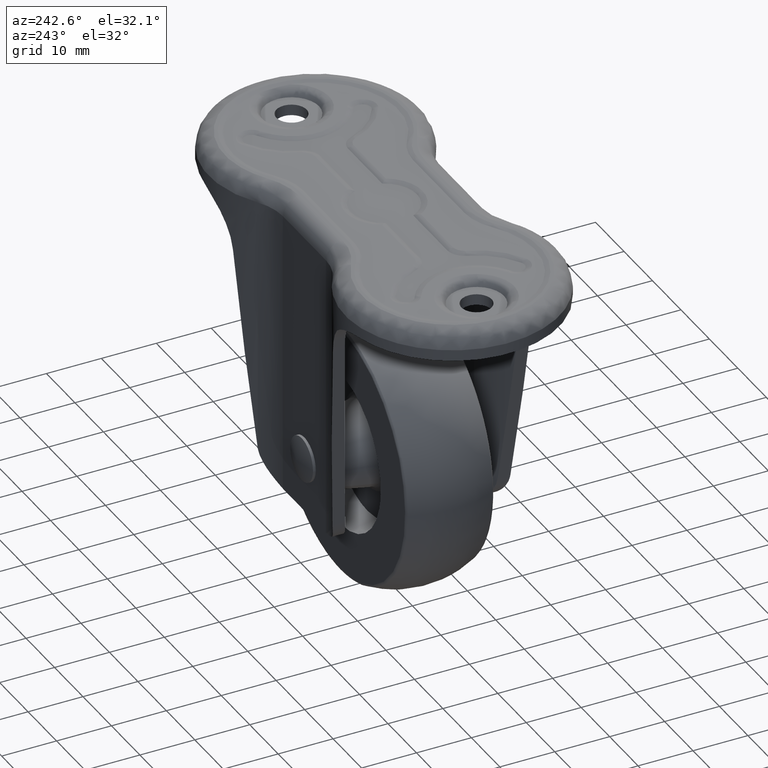
[diagram: clean part render]
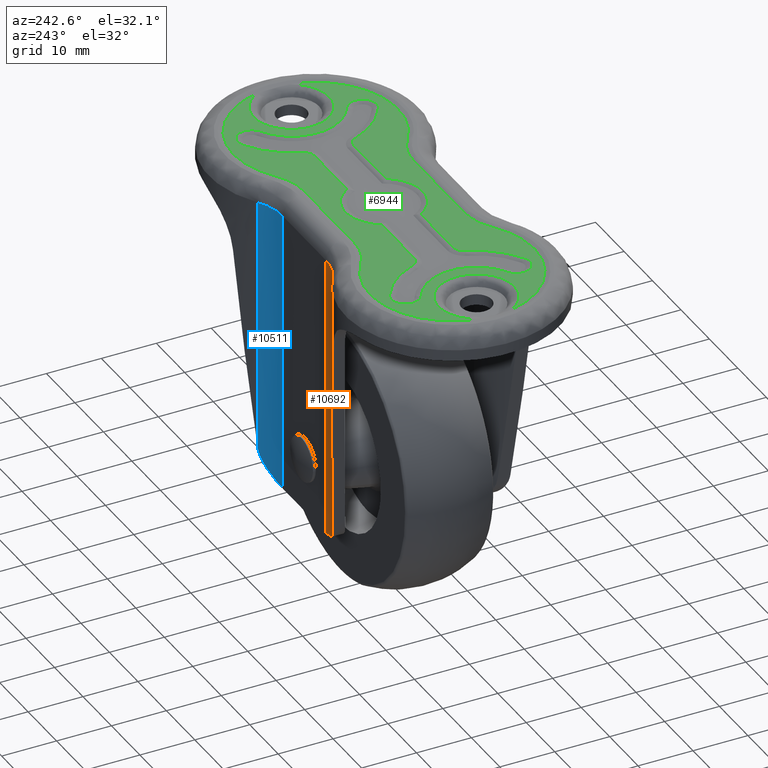
[diagram: same view with three faces highlighted in distinct colors, each labeled with its STEP entity id]
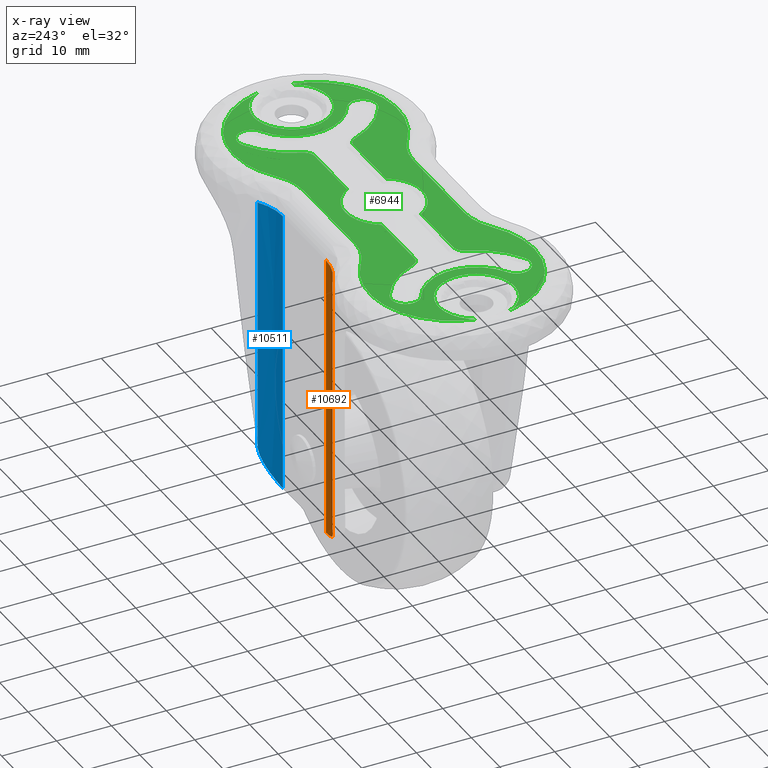
[diagram: x-ray of the same camera — body ghosted, the three highlighted faces saturated]
A machine part, auxiliary view with three faces highlighted in distinct colors.
The next image is the same camera in x-ray (body ghosted, the three faces saturated) — at least one of them is partly hidden behind the body in this view.
Their STEP definitions:

[orange] entity #10692 — the highlighted face is a freeform B-spline surface patch.
#5935=CARTESIAN_POINT('',(-7.568323000000000,14.500000000000000,-3.0));
#5936=VERTEX_POINT('',#5935);
#6067=CARTESIAN_POINT('',(-13.138383149261101,16.194915232496449,-3.0));
#6068=VERTEX_POINT('',#6067);
#6100=CARTESIAN_POINT('',(-13.138383149261101,16.194915232496449,-3.0));
#6101=CARTESIAN_POINT('',(-10.611226200626284,14.499999999999998,-3.0));
#6102=CARTESIAN_POINT('',(-7.568323000000000,14.500000000000000,-3.0));
#6110=(BOUNDED_CURVE()B_SPLINE_CURVE(2,(#6100,#6101,#6102),.UNSPECIFIED.,.F.,.U.)CURVE()GEOMETRIC_REPRESENTATION_ITEM()QUASI_UNIFORM_CURVE()RATIONAL_B_SPLINE_CURVE((1.0,0.956689203460579,1.0))REPRESENTATION_ITEM(''));
#6111=EDGE_CURVE('',#6068,#5936,#6110,.T.);
#9415=CARTESIAN_POINT('',(-13.138383063988879,16.194915359639250,-49.797710523138001));
#9416=VERTEX_POINT('',#9415);
#9417=CARTESIAN_POINT('',(-7.568323000000000,14.500000000000000,-54.988164655750097));
#9418=VERTEX_POINT('',#9417);
#9419=CARTESIAN_POINT('',(-13.138383063988879,16.194915359639250,-49.797710523138001));
#9420=CARTESIAN_POINT('',(-13.091238274713531,16.163296258890821,-50.149163291198803));
#9421=CARTESIAN_POINT('',(-13.014389561234200,16.112180758206950,-50.487927690786996));
#9422=CARTESIAN_POINT('',(-12.858299344993929,16.013543824127680,-50.979551605733540));
#9423=CARTESIAN_POINT('',(-12.799412473243271,15.976996100511190,-51.140654579037580));
#9424=CARTESIAN_POINT('',(-12.700818300560201,15.917519873214280,-51.378318461215088));
#9425=CARTESIAN_POINT('',(-12.666240024781519,15.896918323624780,-51.456873708558547));
#9426=CARTESIAN_POINT('',(-12.593624460554199,15.854300632540360,-51.612668478247073));
#9427=CARTESIAN_POINT('',(-12.555529177608140,15.832253032274719,-51.690001779778129));
#9428=CARTESIAN_POINT('',(-12.358175341932871,15.719890557958980,-52.069900491610973));
#9429=CARTESIAN_POINT('',(-12.177308048448589,15.622578633238110,-52.355095264160937));
#9430=CARTESIAN_POINT('',(-11.872154039316200,15.472825651955970,-52.757822614692920));
#9431=CARTESIAN_POINT('',(-11.764752256056360,15.422259006186691,-52.887852051499117));
#9432=CARTESIAN_POINT('',(-11.594831056390410,15.346253068563440,-53.076658926092911));
#9433=CARTESIAN_POINT('',(-11.536616108629440,15.320848257868461,-53.138656328664958));
#9434=CARTESIAN_POINT('',(-11.417641788420070,15.270323853666991,-53.260070489092911));
#9435=CARTESIAN_POINT('',(-11.357039368644029,15.245268706515400,-53.319336863503452));
#9436=CARTESIAN_POINT('',(-11.048467952259660,15.121334865909221,-53.608626581331599));
#9437=CARTESIAN_POINT('',(-10.783961638104580,15.026492882289769,-53.817721851273028));
#9438=CARTESIAN_POINT('',(-10.359354389956380,14.896247555235380,-54.098472958123459));
#9439=CARTESIAN_POINT('',(-10.213150329789920,14.854832499082940,-54.186536238411783));
#9440=CARTESIAN_POINT('',(-9.986394874259617,14.796442902615450,-54.310065774464313));
#9441=CARTESIAN_POINT('',(-9.909566070609310,14.777602472046910,-54.349812118307732));
#9442=CARTESIAN_POINT('',(-9.753318349520249,14.741299874993620,-54.426362811324509));
#9443=CARTESIAN_POINT('',(-9.674491636565223,14.723976776154490,-54.462874611417050));
#9444=CARTESIAN_POINT('',(-9.277431903126818,14.641796860566480,-54.636460787463527));
#9445=CARTESIAN_POINT('',(-8.949885134945827,14.590073832325480,-54.747127140841833));
#9446=CARTESIAN_POINT('',(-8.443218410055648,14.536898290851759,-54.870586730268002));
#9447=CARTESIAN_POINT('',(-8.271758975496445,14.523247336813281,-54.904608249589202));
#9448=CARTESIAN_POINT('',(-7.923444932431742,14.504785930900130,-54.957810969658922));
#9449=CARTESIAN_POINT('',(-7.746017994479293,14.500000000000000,-54.976987063634077));
#9450=CARTESIAN_POINT('',(-7.568323000000000,14.500000000000000,-54.988164655750097));
#9451=B_SPLINE_CURVE_WITH_KNOTS('',3,(#9419,#9420,#9421,#9422,#9423,#9424,#9425,#9426,#9427,#9428,#9429,#9430,#9431,#9432,#9433,#9434,#9435,#9436,#9437,#9438,#9439,#9440,#9441,#9442,#9443,#9444,#9445,#9446,#9447,#9448,#9449,#9450),.UNSPECIFIED.,.F.,.U.,(4,2,2,2,2,2,2,2,2,2,2,2,2,2,2,4),(0.0,0.125000000000002,0.187500000000003,0.218750000000005,0.250000000000006,0.375000000000011,0.437500000000012,0.468750000000012,0.500000000000012,0.625000000000012,0.687500000000011,0.718750000000010,0.750000000000010,0.875000000000005,0.937500000000002,1.0),.UNSPECIFIED.);
#9452=EDGE_CURVE('',#9416,#9418,#9451,.T.);
#10460=CARTESIAN_POINT('',(-7.568323000000000,14.500000000000000,-3.0));
#10461=CARTESIAN_POINT('',(-7.568323000000000,14.500000000000000,-54.988164655750097));
#10462=QUASI_UNIFORM_CURVE('',1,(#10460,#10461),.UNSPECIFIED.,.F.,.U.);
#10463=EDGE_CURVE('',#5936,#9418,#10462,.T.);
#10655=CARTESIAN_POINT('',(-13.138383149261101,16.194915232496449,-3.0));
#10656=CARTESIAN_POINT('',(-13.138383063988879,16.194915359639250,-49.797710523138001));
#10657=QUASI_UNIFORM_CURVE('',1,(#10655,#10656),.UNSPECIFIED.,.F.,.U.);
#10658=EDGE_CURVE('',#6068,#9416,#10657,.T.);
#10672=CARTESIAN_POINT('',(-13.376946309023106,16.359981864032896,-1.700295883606247));
#10673=CARTESIAN_POINT('',(-13.376946309023106,16.359981864032896,-56.320361375053707));
#10674=CARTESIAN_POINT('',(-10.639573869773178,14.406624378765391,-1.700295883606246));
#10675=CARTESIAN_POINT('',(-10.639573869773178,14.406624378765391,-56.320361375053707));
#10676=CARTESIAN_POINT('',(-7.278132199085204,14.504211421850489,-1.700295883606246));
#10677=CARTESIAN_POINT('',(-7.278132199085204,14.504211421850489,-56.320361375053700));
#10685=(BOUNDED_SURFACE()B_SPLINE_SURFACE(1,2,((#10672,#10674,#10676),(#10673,#10675,#10677)),.UNSPECIFIED.,.F.,.F.,.U.)B_SPLINE_SURFACE_WITH_KNOTS((2,2),(3,3),(0.0,54.620065491447463),(0.0,6.545613450249146),.UNSPECIFIED.)GEOMETRIC_REPRESENTATION_ITEM()RATIONAL_B_SPLINE_SURFACE(((0.997545484935413,0.945310980512866,0.997117298451355),(0.997545484935413,0.945310980512866,0.997117298451355)))REPRESENTATION_ITEM('')SURFACE());
#10686=ORIENTED_EDGE('',*,*,#10658,.F.);
#10687=ORIENTED_EDGE('',*,*,#6111,.T.);
#10688=ORIENTED_EDGE('',*,*,#10463,.T.);
#10689=ORIENTED_EDGE('',*,*,#9452,.F.);
#10690=EDGE_LOOP('',(#10686,#10687,#10688,#10689));
#10691=FACE_OUTER_BOUND('',#10690,.T.);
#10692=ADVANCED_FACE('',(#10691),#10685,.F.);

[blue] entity #10511 — the highlighted face is a freeform B-spline surface patch.
#5860=CARTESIAN_POINT('',(13.138383149261101,16.194915232496399,-3.0));
#5861=VERTEX_POINT('',#5860);
#5875=CARTESIAN_POINT('',(7.568322999999910,14.500000000000000,-3.0));
#5876=VERTEX_POINT('',#5875);
#5877=CARTESIAN_POINT('',(7.568322999999910,14.500000000000000,-3.0));
#5878=CARTESIAN_POINT('',(10.611226200626218,14.499999999999998,-3.000000000000000));
#5879=CARTESIAN_POINT('',(13.138383149261101,16.194915232496399,-3.0));
#5887=(BOUNDED_CURVE()B_SPLINE_CURVE(2,(#5877,#5878,#5879),.UNSPECIFIED.,.F.,.U.)CURVE()GEOMETRIC_REPRESENTATION_ITEM()QUASI_UNIFORM_CURVE()RATIONAL_B_SPLINE_CURVE((1.0,0.956689203460579,1.0))REPRESENTATION_ITEM(''));
#5888=EDGE_CURVE('',#5876,#5861,#5887,.T.);
#8838=CARTESIAN_POINT('',(7.568322999999910,14.500000000000000,-54.988164655750097));
#8839=VERTEX_POINT('',#8838);
#8853=CARTESIAN_POINT('',(13.138383063988840,16.194915359639300,-49.797710523136800));
#8854=VERTEX_POINT('',#8853);
#8855=CARTESIAN_POINT('',(7.568322999999910,14.500000000000000,-54.988164655750197));
#8856=CARTESIAN_POINT('',(7.923174103565640,14.500000000000000,-54.965843369159117));
#8857=CARTESIAN_POINT('',(8.269504132738446,14.518811451216630,-54.912656972294123));
#8858=CARTESIAN_POINT('',(8.777135052808291,14.571872362937540,-54.789348183008322));
#8859=CARTESIAN_POINT('',(8.944356275472249,14.593714002141519,-54.740943021128032));
#8860=CARTESIAN_POINT('',(9.192221521122660,14.632378906000749,-54.657323470888777));
#8861=CARTESIAN_POINT('',(9.274348198131314,14.646251408492070,-54.627612275254918));
#8862=CARTESIAN_POINT('',(9.437606419821270,14.675914150533670,-54.564470398189769));
#8863=CARTESIAN_POINT('',(9.518230909715436,14.691613704707100,-54.531232488570303));
#8864=CARTESIAN_POINT('',(9.915455207590478,14.773937508679801,-54.357350870553212));
#8865=CARTESIAN_POINT('',(10.215622039929650,14.852196870978570,-54.193413179448562));
#8866=CARTESIAN_POINT('',(10.641764523877930,14.982855913925940,-53.911790491594971));
#8867=CARTESIAN_POINT('',(10.779767310172300,15.028630264177430,-53.811921587810922));
#8868=CARTESIAN_POINT('',(11.047769495046079,15.123770943598631,-53.599947452603743));
#8869=CARTESIAN_POINT('',(11.176292667003681,15.172614195989469,-53.488994789581199));
#8870=CARTESIAN_POINT('',(11.545245845016151,15.320982138360661,-53.142469695308257));
#8871=CARTESIAN_POINT('',(11.769715364466590,15.422564096184660,-52.892962691731803));
#8872=CARTESIAN_POINT('',(12.024477995751710,15.547575527931500,-52.556806213334013));
#8873=CARTESIAN_POINT('',(12.074128061589230,15.572476899892679,-52.488350009426448));
#8874=CARTESIAN_POINT('',(12.170803674148900,15.621930412523289,-52.348911183156751));
#8875=CARTESIAN_POINT('',(12.217933598494090,15.646538820230360,-52.277758272841503));
#8876=CARTESIAN_POINT('',(12.354380084211270,15.719096179553050,-52.061891944191053));
#8877=CARTESIAN_POINT('',(12.438802241335591,15.765785757194740,-51.914801156486703));
#8878=CARTESIAN_POINT('',(12.672940046048691,15.899119188640929,-51.463779852750413));
#8879=CARTESIAN_POINT('',(12.803711789479150,15.979084366991369,-51.150192467451859));
#8880=CARTESIAN_POINT('',(12.960578048423310,16.078158737947138,-50.658038902578703));
#8881=CARTESIAN_POINT('',(13.006273979166620,16.107692416750591,-50.490337245351967));
#8882=CARTESIAN_POINT('',(13.083638963736499,16.158331866836349,-50.146918857517797));
#8883=CARTESIAN_POINT('',(13.114831234363040,16.179119601821821,-49.973283600079498));
#8884=CARTESIAN_POINT('',(13.138383063988821,16.194915359639250,-49.797710523136800));
#8885=B_SPLINE_CURVE_WITH_KNOTS('',3,(#8855,#8856,#8857,#8858,#8859,#8860,#8861,#8862,#8863,#8864,#8865,#8866,#8867,#8868,#8869,#8870,#8871,#8872,#8873,#8874,#8875,#8876,#8877,#8878,#8879,#8880,#8881,#8882,#8883,#8884),.UNSPECIFIED.,.F.,.U.,(4,2,2,2,2,2,2,2,2,2,2,2,2,2,4),(0.0,0.124999999999998,0.187499999999998,0.218749999999997,0.249999999999997,0.374999999999997,0.437499999999997,0.499999999999997,0.625000000000000,0.656250000000000,0.687500000000000,0.750000000000000,0.875000000000000,0.937500000000000,1.0),.UNSPECIFIED.);
#8886=EDGE_CURVE('',#8839,#8854,#8885,.T.);
#10466=CARTESIAN_POINT('',(7.568322999999910,14.500000000000000,-3.0));
#10467=CARTESIAN_POINT('',(7.568322999999910,14.500000000000000,-54.988164655750097));
#10468=QUASI_UNIFORM_CURVE('',1,(#10466,#10467),.UNSPECIFIED.,.F.,.U.);
#10469=EDGE_CURVE('',#5876,#8839,#10468,.T.);
#10487=CARTESIAN_POINT('',(7.280208138183072,14.504151370373791,-1.700295883606246));
#10488=CARTESIAN_POINT('',(7.280208138183072,14.504151370373791,-56.320361375053700));
#10489=CARTESIAN_POINT('',(10.641174522982755,14.407276717564669,-1.700295883606246));
#10490=CARTESIAN_POINT('',(10.641174522982755,14.407276717564669,-56.320361375053700));
#10491=CARTESIAN_POINT('',(13.377911791425477,16.360670907590574,-1.700295883606246));
#10492=CARTESIAN_POINT('',(13.377911791425477,16.360670907590574,-56.320361375053693));
#10500=(BOUNDED_SURFACE()B_SPLINE_SURFACE(1,2,((#10487,#10489,#10491),(#10488,#10490,#10492)),.UNSPECIFIED.,.F.,.F.,.U.)B_SPLINE_SURFACE_WITH_KNOTS((2,2),(3,3),(0.0,54.620065491447463),(0.0,6.544671564971601),.UNSPECIFIED.)GEOMETRIC_REPRESENTATION_ITEM()RATIONAL_B_SPLINE_SURFACE(((1.0,0.944030759420616,0.991947840278361),(1.0,0.944030759420616,0.991947840278361)))REPRESENTATION_ITEM('')SURFACE());
#10501=ORIENTED_EDGE('',*,*,#10469,.F.);
#10502=ORIENTED_EDGE('',*,*,#5888,.T.);
#10503=CARTESIAN_POINT('',(13.138383149261101,16.194915232496399,-3.0));
#10504=CARTESIAN_POINT('',(13.138383063988840,16.194915359639300,-49.797710523136800));
#10505=QUASI_UNIFORM_CURVE('',1,(#10503,#10504),.UNSPECIFIED.,.F.,.U.);
#10506=EDGE_CURVE('',#5861,#8854,#10505,.T.);
#10507=ORIENTED_EDGE('',*,*,#10506,.T.);
#10508=ORIENTED_EDGE('',*,*,#8886,.F.);
#10509=EDGE_LOOP('',(#10501,#10502,#10507,#10508));
#10510=FACE_OUTER_BOUND('',#10509,.T.);
#10511=ADVANCED_FACE('',(#10510),#10500,.F.);

[green] entity #6944 — the highlighted face is a freeform B-spline surface patch.
#3243=CARTESIAN_POINT('',(26.047613394952311,2.368902925116919,-0.200000000000000));
#3244=VERTEX_POINT('',#3243);
#3258=CARTESIAN_POINT('',(38.706176823812051,-2.954380345651690,-0.200000000000017));
#3259=VERTEX_POINT('',#3258);
#3260=CARTESIAN_POINT('',(38.706176823812058,-2.954380345651694,-0.200000000000000));
#3261=CARTESIAN_POINT('',(36.344690616050030,-7.915082509113887,-0.200000000000000));
#3262=CARTESIAN_POINT('',(30.985595608265271,-6.704593450276422,-0.200000000000000));
#3263=CARTESIAN_POINT('',(25.626500600480504,-5.494104391438955,-0.200000000000000));
#3264=CARTESIAN_POINT('',(25.626500600480501,0.0,-0.200000000000000));
#3265=CARTESIAN_POINT('',(25.626500600480501,1.221881444278796,-0.200000000000000));
#3266=CARTESIAN_POINT('',(26.047613394952304,2.368902925116919,-0.200000000000000));
#3274=(BOUNDED_CURVE()B_SPLINE_CURVE(2,(#3260,#3261,#3262,#3263,#3264,#3265,#3266),.UNSPECIFIED.,.F.,.U.)B_SPLINE_CURVE_WITH_KNOTS((3,2,2,3),(0.0,0.250000000000000,0.500000000000000,0.567003238297264),.UNSPECIFIED.)CURVE()GEOMETRIC_REPRESENTATION_ITEM()RATIONAL_B_SPLINE_CURVE((1.0,0.781129020267206,1.0,0.781129020267206,1.0,0.941339742354432,0.914122902481703))REPRESENTATION_ITEM(''));
#3275=EDGE_CURVE('',#3259,#3244,#3274,.T.);
#3277=CARTESIAN_POINT('',(38.706176823812051,2.954380345651690,-0.200000000000017));
#3278=VERTEX_POINT('',#3277);
#3300=CARTESIAN_POINT('',(29.820764818798569,6.329825655956293,-0.200000000000001));
#3301=VERTEX_POINT('',#3300);
#3302=CARTESIAN_POINT('',(29.820764818798569,6.329825655956293,-0.200000000000000));
#3303=CARTESIAN_POINT('',(30.386434508754327,6.569257548527065,-0.200000000000000));
#3304=CARTESIAN_POINT('',(30.985595608265260,6.704593450276419,-0.200000000000000));
#3305=CARTESIAN_POINT('',(36.344690616050016,7.915082509113889,-0.200000000000000));
#3306=CARTESIAN_POINT('',(38.706176823812058,2.954380345651702,-0.200000000000000));
#3314=(BOUNDED_CURVE()B_SPLINE_CURVE(2,(#3302,#3303,#3304,#3305,#3306),.UNSPECIFIED.,.F.,.U.)B_SPLINE_CURVE_WITH_KNOTS((3,2,3),(0.715304508942357,0.750000000000000,1.0),.UNSPECIFIED.)CURVE()GEOMETRIC_REPRESENTATION_ITEM()RATIONAL_B_SPLINE_CURVE((0.947680410981563,0.969624655519613,1.0,0.781129020267206,1.0))REPRESENTATION_ITEM(''));
#3315=EDGE_CURVE('',#3301,#3278,#3314,.T.);
#3364=CARTESIAN_POINT('',(26.047613394952304,2.368902925116919,-0.200000000000000));
#3365=CARTESIAN_POINT('',(27.075146252522231,5.167683401962532,-0.200000000000000));
#3366=CARTESIAN_POINT('',(29.820764818798573,6.329825655956293,-0.200000000000000));
#3374=(BOUNDED_CURVE()B_SPLINE_CURVE(2,(#3364,#3365,#3366),.UNSPECIFIED.,.F.,.U.)B_SPLINE_CURVE_WITH_KNOTS((3,3),(0.567003238297264,0.715304508942357),.UNSPECIFIED.)CURVE()GEOMETRIC_REPRESENTATION_ITEM()RATIONAL_B_SPLINE_CURVE((0.914122902481703,0.853882650836515,0.947680410981563))REPRESENTATION_ITEM(''));
#3375=EDGE_CURVE('',#3244,#3301,#3374,.T.);
#3482=CARTESIAN_POINT('',(-38.706176823812051,-2.954380345651690,-0.200000000000017));
#3483=VERTEX_POINT('',#3482);
#3505=CARTESIAN_POINT('',(-35.592513069780892,6.138514222966232,-0.200000000000001));
#3506=VERTEX_POINT('',#3505);
#3507=CARTESIAN_POINT('',(-35.592513069780892,6.138514222966232,-0.200000000000000));
#3508=CARTESIAN_POINT('',(-33.390582736527200,7.247821476869923,-0.200000000000000));
#3509=CARTESIAN_POINT('',(-30.985595608265260,6.704593450276421,-0.200000000000000));
#3510=CARTESIAN_POINT('',(-25.626500600480501,5.494104391438953,-0.200000000000000));
#3511=CARTESIAN_POINT('',(-25.626500600480501,0.0,-0.200000000000000));
#3512=CARTESIAN_POINT('',(-25.626500600480501,-5.494104391438953,-0.200000000000000));
#3513=CARTESIAN_POINT('',(-30.985595608265271,-6.704593450276421,-0.200000000000000));
#3514=CARTESIAN_POINT('',(-36.344690616050023,-7.915082509113887,-0.200000000000000));
#3515=CARTESIAN_POINT('',(-38.706176823812058,-2.954380345651696,-0.200000000000000));
#3523=(BOUNDED_CURVE()B_SPLINE_CURVE(2,(#3507,#3508,#3509,#3510,#3511,#3512,#3513,#3514,#3515),.UNSPECIFIED.,.F.,.U.)B_SPLINE_CURVE_WITH_KNOTS((3,2,2,2,3),(0.122415194001758,0.250000000000000,0.500000000000000,0.750000000000000,1.0),.UNSPECIFIED.)CURVE()GEOMETRIC_REPRESENTATION_ITEM()RATIONAL_B_SPLINE_CURVE((0.890611304553301,0.888301554048585,1.0,0.781129020267206,1.0,0.781129020267206,1.0,0.781129020267206,1.0))REPRESENTATION_ITEM(''));
#3524=EDGE_CURVE('',#3506,#3483,#3523,.T.);
#3573=CARTESIAN_POINT('',(-38.706176823812051,2.954380345651690,-0.200000000000017));
#3574=VERTEX_POINT('',#3573);
#3575=CARTESIAN_POINT('',(-38.706176823812058,2.954380345651694,-0.200000000000000));
#3576=CARTESIAN_POINT('',(-37.694513604632093,5.079550462498260,-0.200000000000000));
#3577=CARTESIAN_POINT('',(-35.592513069780892,6.138514222966232,-0.200000000000000));
#3585=(BOUNDED_CURVE()B_SPLINE_CURVE(2,(#3575,#3576,#3577),.UNSPECIFIED.,.F.,.U.)B_SPLINE_CURVE_WITH_KNOTS((3,3),(0.0,0.122415194001758),.UNSPECIFIED.)CURVE()GEOMETRIC_REPRESENTATION_ITEM()RATIONAL_B_SPLINE_CURVE((1.0,0.892827466218621,0.890611304553302))REPRESENTATION_ITEM(''));
#3586=EDGE_CURVE('',#3574,#3506,#3585,.T.);
#4439=CARTESIAN_POINT('',(-17.475021000000201,3.553565375285300,-0.200000000000000));
#4440=VERTEX_POINT('',#4439);
#4441=CARTESIAN_POINT('',(-6.093025326305110,3.553565375285300,-0.200000000000000));
#4442=VERTEX_POINT('',#4441);
#4443=CARTESIAN_POINT('',(-17.475021000000201,3.553565375285300,-0.200000000000000));
#4444=CARTESIAN_POINT('',(-6.093025326305110,3.553565375285300,-0.200000000000000));
#4445=QUASI_UNIFORM_CURVE('',1,(#4443,#4444),.UNSPECIFIED.,.F.,.U.);
#4446=EDGE_CURVE('',#4440,#4442,#4445,.T.);
#4525=CARTESIAN_POINT('',(-19.302842232089951,4.830913090988600,-0.200000000000000));
#4526=VERTEX_POINT('',#4525);
#4556=CARTESIAN_POINT('',(-19.302842232089962,4.830913090988596,-0.200000000000000));
#4557=CARTESIAN_POINT('',(-18.835260052920447,3.553565375285295,-0.200000000000000));
#4558=CARTESIAN_POINT('',(-17.475021000000201,3.553565375285295,-0.200000000000000));
#4566=(BOUNDED_CURVE()B_SPLINE_CURVE(2,(#4556,#4557,#4558),.UNSPECIFIED.,.F.,.U.)CURVE()GEOMETRIC_REPRESENTATION_ITEM()QUASI_UNIFORM_CURVE()RATIONAL_B_SPLINE_CURVE((1.0,0.819679816597918,1.0))REPRESENTATION_ITEM(''));
#4567=EDGE_CURVE('',#4526,#4440,#4566,.T.);
#4597=CARTESIAN_POINT('',(6.093025326305110,3.553565375285300,-0.200000000000000));
#4598=VERTEX_POINT('',#4597);
#4618=CARTESIAN_POINT('',(-6.093025326305113,3.553565375285302,-0.200000000000000));
#4619=CARTESIAN_POINT('',(-4.051760413158855,7.053565375285190,-0.200000000000000));
#4620=CARTESIAN_POINT('',(0.0,7.053565375285190,-0.200000000000000));
#4621=CARTESIAN_POINT('',(4.051760413158855,7.053565375285190,-0.200000000000000));
#4622=CARTESIAN_POINT('',(6.093025326305113,3.553565375285303,-0.200000000000000));
#4630=(BOUNDED_CURVE()B_SPLINE_CURVE(2,(#4618,#4619,#4620,#4621,#4622),.UNSPECIFIED.,.F.,.U.)B_SPLINE_CURVE_WITH_KNOTS((3,2,3),(0.0,0.500000000000000,1.0),.UNSPECIFIED.)CURVE()GEOMETRIC_REPRESENTATION_ITEM()RATIONAL_B_SPLINE_CURVE((1.0,0.867120822757507,1.0,0.867120822757507,1.0))REPRESENTATION_ITEM(''));
#4631=EDGE_CURVE('',#4442,#4598,#4630,.T.);
#4669=CARTESIAN_POINT('',(-25.778729633779250,12.342091574023300,-0.200000000000000));
#4670=VERTEX_POINT('',#4669);
#4700=CARTESIAN_POINT('',(-25.778729633779250,12.342091574023311,-0.200000000000000));
#4701=CARTESIAN_POINT('',(-21.124564635724340,9.807521068423750,-0.200000000000000));
#4702=CARTESIAN_POINT('',(-19.302842232089951,4.830913090988600,-0.200000000000000));
#4710=(BOUNDED_CURVE()B_SPLINE_CURVE(2,(#4700,#4701,#4702),.UNSPECIFIED.,.F.,.U.)CURVE()GEOMETRIC_REPRESENTATION_ITEM()QUASI_UNIFORM_CURVE()RATIONAL_B_SPLINE_CURVE((1.0,0.935682532506134,1.0))REPRESENTATION_ITEM(''));
#4711=EDGE_CURVE('',#4670,#4526,#4710,.T.);
#4732=CARTESIAN_POINT('',(17.475021000000002,3.553565375285300,-0.200000000000000));
#4733=VERTEX_POINT('',#4732);
#4747=CARTESIAN_POINT('',(6.093025326305110,3.553565375285300,-0.200000000000000));
#4748=CARTESIAN_POINT('',(17.475021000000002,3.553565375285300,-0.200000000000000));
#4749=QUASI_UNIFORM_CURVE('',1,(#4747,#4748),.UNSPECIFIED.,.F.,.U.);
#4750=EDGE_CURVE('',#4598,#4733,#4749,.T.);
#4784=CARTESIAN_POINT('',(-28.221270417109899,7.856918330414100,-0.200000000000000));
#4785=VERTEX_POINT('',#4784);
#4819=CARTESIAN_POINT('',(-28.221270417109899,7.856918330414100,-0.200000000000000));
#4820=CARTESIAN_POINT('',(-29.516028381338099,8.562019167185664,-0.200000000000000));
#4821=CARTESIAN_POINT('',(-29.552772180498369,10.035862873001030,-0.200000000000000));
#4822=CARTESIAN_POINT('',(-29.589515979658646,11.509706578816397,-0.200000000000000));
#4823=CARTESIAN_POINT('',(-28.331501788693309,12.278449495062221,-0.200000000000000));
#4824=CARTESIAN_POINT('',(-27.073487597727979,13.047192411308052,-0.200000000000000));
#4825=CARTESIAN_POINT('',(-25.778729633779250,12.342091574023300,-0.200000000000000));
#4833=(BOUNDED_CURVE()B_SPLINE_CURVE(2,(#4819,#4820,#4821,#4822,#4823,#4824,#4825),.UNSPECIFIED.,.F.,.U.)B_SPLINE_CURVE_WITH_KNOTS((3,2,2,3),(0.0,0.333333333333333,0.666666666666667,1.0),.UNSPECIFIED.)CURVE()GEOMETRIC_REPRESENTATION_ITEM()RATIONAL_B_SPLINE_CURVE((1.0,0.866025403751409,1.0,0.866025403751409,1.0,0.866025403751409,1.0))REPRESENTATION_ITEM(''));
#4834=EDGE_CURVE('',#4785,#4670,#4833,.T.);
#4874=CARTESIAN_POINT('',(19.302842229864449,4.830913084909440,-0.200000000000000));
#4875=VERTEX_POINT('',#4874);
#4889=CARTESIAN_POINT('',(17.475021000000002,3.553565375285295,-0.200000000000000));
#4890=CARTESIAN_POINT('',(18.835260048102647,3.553565375285295,-0.200000000000000));
#4891=CARTESIAN_POINT('',(19.302842229864439,4.830913084909443,-0.200000000000000));
#4899=(BOUNDED_CURVE()B_SPLINE_CURVE(2,(#4889,#4890,#4891),.UNSPECIFIED.,.F.,.U.)CURVE()GEOMETRIC_REPRESENTATION_ITEM()QUASI_UNIFORM_CURVE()RATIONAL_B_SPLINE_CURVE((1.0,0.819679817550493,1.0))REPRESENTATION_ITEM(''));
#4900=EDGE_CURVE('',#4733,#4875,#4899,.T.);
#4942=CARTESIAN_POINT('',(-28.221270389936301,-7.856918377253641,-0.200000000000000));
#4943=VERTEX_POINT('',#4942);
#4975=CARTESIAN_POINT('',(-28.221270389936301,-7.856918377253641,-0.200000000000000));
#4976=CARTESIAN_POINT('',(-23.553565374850649,-5.314974171597568,-0.200000000000000));
#4977=CARTESIAN_POINT('',(-23.553565375285181,7.314111E-010,-0.200000000000000));
#4978=CARTESIAN_POINT('',(-23.553565375719703,5.314974173060390,-0.200000000000000));
#4979=CARTESIAN_POINT('',(-28.221270417109899,7.856918330414112,-0.200000000000000));
#4987=(BOUNDED_CURVE()B_SPLINE_CURVE(2,(#4975,#4976,#4977,#4978,#4979),.UNSPECIFIED.,.F.,.U.)B_SPLINE_CURVE_WITH_KNOTS((3,2,3),(0.0,0.500000000000000,1.0),.UNSPECIFIED.)CURVE()GEOMETRIC_REPRESENTATION_ITEM()RATIONAL_B_SPLINE_CURVE((1.0,0.859726952984286,1.0,0.859726952984286,1.0))REPRESENTATION_ITEM(''));
#4988=EDGE_CURVE('',#4943,#4785,#4987,.T.);
#5012=CARTESIAN_POINT('',(25.778729634648549,12.342091574496701,-0.200000000000000));
#5013=VERTEX_POINT('',#5012);
#5027=CARTESIAN_POINT('',(19.302842229864449,4.830913084909440,-0.200000000000000));
#5028=CARTESIAN_POINT('',(21.124564632671763,9.807521067186400,-0.200000000000000));
#5029=CARTESIAN_POINT('',(25.778729634648549,12.342091574496710,-0.200000000000000));
#5037=(BOUNDED_CURVE()B_SPLINE_CURVE(2,(#5027,#5028,#5029),.UNSPECIFIED.,.F.,.U.)CURVE()GEOMETRIC_REPRESENTATION_ITEM()QUASI_UNIFORM_CURVE()RATIONAL_B_SPLINE_CURVE((1.0,0.935682532412440,1.0))REPRESENTATION_ITEM(''));
#5038=EDGE_CURVE('',#4875,#5013,#5037,.T.);
#5080=CARTESIAN_POINT('',(-25.778729634648851,-12.342091574496880,-0.200000000000000));
#5081=VERTEX_POINT('',#5080);
#5115=CARTESIAN_POINT('',(-25.778729634648851,-12.342091574496880,-0.200000000000000));
#5116=CARTESIAN_POINT('',(-27.073487598963258,-13.047192411329712,-0.200000000000000));
#5117=CARTESIAN_POINT('',(-28.331501789672679,-12.278449494463700,-0.200000000000000));
#5118=CARTESIAN_POINT('',(-29.589515980382092,-11.509706577597674,-0.200000000000000));
#5119=CARTESIAN_POINT('',(-29.552772180465841,-10.035862871696111,-0.200000000000000));
#5120=CARTESIAN_POINT('',(-29.516028380549592,-8.562019165794540,-0.200000000000000));
#5121=CARTESIAN_POINT('',(-28.221270389936251,-7.856918377253734,-0.200000000000000));
#5129=(BOUNDED_CURVE()B_SPLINE_CURVE(2,(#5115,#5116,#5117,#5118,#5119,#5120,#5121),.UNSPECIFIED.,.F.,.U.)B_SPLINE_CURVE_WITH_KNOTS((3,2,2,3),(0.0,0.333333333333333,0.666666666666667,1.0),.UNSPECIFIED.)CURVE()GEOMETRIC_REPRESENTATION_ITEM()RATIONAL_B_SPLINE_CURVE((1.0,0.866025403735988,1.0,0.866025403735988,1.0,0.866025403735988,1.0))REPRESENTATION_ITEM(''));
#5130=EDGE_CURVE('',#5081,#4943,#5129,.T.);
#5160=CARTESIAN_POINT('',(28.221270389936400,7.856918377253980,-0.200000000000000));
#5161=VERTEX_POINT('',#5160);
#5175=CARTESIAN_POINT('',(25.778729634648549,12.342091574496701,-0.200000000000000));
#5176=CARTESIAN_POINT('',(27.073487598962849,13.047192411329807,-0.200000000000000));
#5177=CARTESIAN_POINT('',(28.331501789672402,12.278449494463930,-0.200000000000000));
#5178=CARTESIAN_POINT('',(29.589515980381943,11.509706577598047,-0.200000000000000));
#5179=CARTESIAN_POINT('',(29.552772180465851,10.035862871696439,-0.200000000000000));
#5180=CARTESIAN_POINT('',(29.516028380549752,8.562019165794833,-0.200000000000000));
#5181=CARTESIAN_POINT('',(28.221270389936400,7.856918377253980,-0.200000000000000));
#5189=(BOUNDED_CURVE()B_SPLINE_CURVE(2,(#5175,#5176,#5177,#5178,#5179,#5180,#5181),.UNSPECIFIED.,.F.,.U.)B_SPLINE_CURVE_WITH_KNOTS((3,2,2,3),(0.0,0.333333333333333,0.666666666666667,1.0),.UNSPECIFIED.)CURVE()GEOMETRIC_REPRESENTATION_ITEM()RATIONAL_B_SPLINE_CURVE((1.0,0.866025403735982,1.0,0.866025403735982,1.0,0.866025403735982,1.0))REPRESENTATION_ITEM(''));
#5190=EDGE_CURVE('',#5013,#5161,#5189,.T.);
#5230=CARTESIAN_POINT('',(-19.302842229864648,-4.830913084909300,-0.200000000000000));
#5231=VERTEX_POINT('',#5230);
#5261=CARTESIAN_POINT('',(-19.302842229864648,-4.830913084909300,-0.200000000000000));
#5262=CARTESIAN_POINT('',(-21.124564632671799,-9.807521067186574,-0.200000000000000));
#5263=CARTESIAN_POINT('',(-25.778729634648851,-12.342091574496880,-0.200000000000000));
#5271=(BOUNDED_CURVE()B_SPLINE_CURVE(2,(#5261,#5262,#5263),.UNSPECIFIED.,.F.,.U.)CURVE()GEOMETRIC_REPRESENTATION_ITEM()QUASI_UNIFORM_CURVE()RATIONAL_B_SPLINE_CURVE((1.0,0.935682532412435,1.0))REPRESENTATION_ITEM(''));
#5272=EDGE_CURVE('',#5231,#5081,#5271,.T.);
#5302=CARTESIAN_POINT('',(28.221270417109601,-7.856918330413940,-0.200000000000000));
#5303=VERTEX_POINT('',#5302);
#5317=CARTESIAN_POINT('',(28.221270389936400,7.856918377253980,-0.200000000000000));
#5318=CARTESIAN_POINT('',(23.553565374850834,5.314974171597839,-0.200000000000000));
#5319=CARTESIAN_POINT('',(23.553565375285181,-7.311120E-010,-0.200000000000000));
#5320=CARTESIAN_POINT('',(23.553565375719515,-5.314974173060064,-0.200000000000000));
#5321=CARTESIAN_POINT('',(28.221270417109590,-7.856918330413949,-0.200000000000000));
#5329=(BOUNDED_CURVE()B_SPLINE_CURVE(2,(#5317,#5318,#5319,#5320,#5321),.UNSPECIFIED.,.F.,.U.)B_SPLINE_CURVE_WITH_KNOTS((3,2,3),(0.0,0.500000000000000,1.0),.UNSPECIFIED.)CURVE()GEOMETRIC_REPRESENTATION_ITEM()RATIONAL_B_SPLINE_CURVE((1.0,0.859726952984288,1.0,0.859726952984288,1.0))REPRESENTATION_ITEM(''));
#5330=EDGE_CURVE('',#5161,#5303,#5329,.T.);
#5384=CARTESIAN_POINT('',(-17.475021000000201,-3.553565375285070,-0.200000000000000));
#5385=VERTEX_POINT('',#5384);
#5415=CARTESIAN_POINT('',(-17.475021000000201,-3.553565375285074,-0.200000000000000));
#5416=CARTESIAN_POINT('',(-18.835260048102899,-3.553565375285075,-0.200000000000000));
#5417=CARTESIAN_POINT('',(-19.302842229864670,-4.830913084909294,-0.200000000000000));
#5425=(BOUNDED_CURVE()B_SPLINE_CURVE(2,(#5415,#5416,#5417),.UNSPECIFIED.,.F.,.U.)CURVE()GEOMETRIC_REPRESENTATION_ITEM()QUASI_UNIFORM_CURVE()RATIONAL_B_SPLINE_CURVE((1.0,0.819679817550482,1.0))REPRESENTATION_ITEM(''));
#5426=EDGE_CURVE('',#5385,#5231,#5425,.T.);
#5456=CARTESIAN_POINT('',(25.778729607325449,-12.342091621255079,-0.200000000000000));
#5457=VERTEX_POINT('',#5456);
#5471=CARTESIAN_POINT('',(28.221270417109601,-7.856918330413940,-0.200000000000000));
#5472=CARTESIAN_POINT('',(29.516028381463475,-8.562019167253673,-0.200000000000000));
#5473=CARTESIAN_POINT('',(29.552772180503709,-10.035862873215050,-0.200000000000000));
#5474=CARTESIAN_POINT('',(29.589515979543958,-11.509706579176422,-0.200000000000000));
#5475=CARTESIAN_POINT('',(28.331501788327589,-12.278449495285651,-0.200000000000000));
#5476=CARTESIAN_POINT('',(27.073487597111232,-13.047192411394880,-0.200000000000000));
#5477=CARTESIAN_POINT('',(25.778729607325449,-12.342091621255079,-0.200000000000000));
#5485=(BOUNDED_CURVE()B_SPLINE_CURVE(2,(#5471,#5472,#5473,#5474,#5475,#5476,#5477),.UNSPECIFIED.,.F.,.U.)B_SPLINE_CURVE_WITH_KNOTS((3,2,2,3),(0.0,0.333333333333333,0.666666666666667,1.0),.UNSPECIFIED.)CURVE()GEOMETRIC_REPRESENTATION_ITEM()RATIONAL_B_SPLINE_CURVE((1.0,0.866025403730414,1.0,0.866025403730414,1.0,0.866025403730414,1.0))REPRESENTATION_ITEM(''));
#5486=EDGE_CURVE('',#5303,#5457,#5485,.T.);
#5523=CARTESIAN_POINT('',(-6.093025326305240,-3.553565375285070,-0.200000000000000));
#5524=VERTEX_POINT('',#5523);
#5552=CARTESIAN_POINT('',(-6.093025326305240,-3.553565375285070,-0.200000000000000));
#5553=CARTESIAN_POINT('',(-17.475021000000201,-3.553565375285070,-0.200000000000000));
#5554=QUASI_UNIFORM_CURVE('',1,(#5552,#5553),.UNSPECIFIED.,.F.,.U.);
#5555=EDGE_CURVE('',#5524,#5385,#5554,.T.);
#5579=CARTESIAN_POINT('',(19.302842054839349,-4.830913156733220,-0.200000000000000));
#5580=VERTEX_POINT('',#5579);
#5594=CARTESIAN_POINT('',(25.778729607325449,-12.342091621255079,-0.200000000000000));
#5595=CARTESIAN_POINT('',(21.124564636003512,-9.807521068299653,-0.200000000000000));
#5596=CARTESIAN_POINT('',(19.302842054839370,-4.830913156733220,-0.200000000000000));
#5604=(BOUNDED_CURVE()B_SPLINE_CURVE(2,(#5594,#5595,#5596),.UNSPECIFIED.,.F.,.U.)CURVE()GEOMETRIC_REPRESENTATION_ITEM()QUASI_UNIFORM_CURVE()RATIONAL_B_SPLINE_CURVE((1.0,0.935682532524354,1.0))REPRESENTATION_ITEM(''));
#5605=EDGE_CURVE('',#5457,#5580,#5604,.T.);
#5647=CARTESIAN_POINT('',(6.093025326305240,-3.553565375285070,-0.200000000000000));
#5648=VERTEX_POINT('',#5647);
#5686=CARTESIAN_POINT('',(6.093025326305248,-3.553565375285071,-0.200000000000000));
#5687=CARTESIAN_POINT('',(4.051760413159034,-7.053565375285190,-0.200000000000000));
#5688=CARTESIAN_POINT('',(0.0,-7.053565375285190,-0.200000000000000));
#5689=CARTESIAN_POINT('',(-4.051760413159032,-7.053565375285190,-0.200000000000000));
#5690=CARTESIAN_POINT('',(-6.093025326305246,-3.553565375285073,-0.200000000000000));
#5698=(BOUNDED_CURVE()B_SPLINE_CURVE(2,(#5686,#5687,#5688,#5689,#5690),.UNSPECIFIED.,.F.,.U.)B_SPLINE_CURVE_WITH_KNOTS((3,2,3),(0.0,0.500000000000000,1.0),.UNSPECIFIED.)CURVE()GEOMETRIC_REPRESENTATION_ITEM()RATIONAL_B_SPLINE_CURVE((1.0,0.867120822757498,1.0,0.867120822757498,1.0))REPRESENTATION_ITEM(''));
#5699=EDGE_CURVE('',#5648,#5524,#5698,.T.);
#5739=CARTESIAN_POINT('',(17.475021000000002,-3.553565375285070,-0.200000000000000));
#5740=VERTEX_POINT('',#5739);
#5754=CARTESIAN_POINT('',(19.302842054839349,-4.830913156733220,-0.200000000000000));
#5755=CARTESIAN_POINT('',(18.835260053521992,-3.553565375285074,-0.200000000000000));
#5756=CARTESIAN_POINT('',(17.475021000000002,-3.553565375285074,-0.200000000000000));
#5764=(BOUNDED_CURVE()B_SPLINE_CURVE(2,(#5754,#5755,#5756),.UNSPECIFIED.,.F.,.U.)CURVE()GEOMETRIC_REPRESENTATION_ITEM()QUASI_UNIFORM_CURVE()RATIONAL_B_SPLINE_CURVE((1.0,0.819679816478935,1.0))REPRESENTATION_ITEM(''));
#5765=EDGE_CURVE('',#5580,#5740,#5764,.T.);
#5799=CARTESIAN_POINT('',(17.475021000000002,-3.553565375285070,-0.200000000000000));
#5800=CARTESIAN_POINT('',(6.093025326305240,-3.553565375285070,-0.200000000000000));
#5801=QUASI_UNIFORM_CURVE('',1,(#5799,#5800),.UNSPECIFIED.,.F.,.U.);
#5802=EDGE_CURVE('',#5740,#5648,#5801,.T.);
#6376=CARTESIAN_POINT('',(9.0,10.0,-0.199999999999978));
#6377=VERTEX_POINT('',#6376);
#6391=CARTESIAN_POINT('',(15.000000049449500,12.000000037087240,-0.199999999999978));
#6392=VERTEX_POINT('',#6391);
#6393=CARTESIAN_POINT('',(9.0,10.0,-0.199999999999978));
#6394=CARTESIAN_POINT('',(12.333333367673301,9.999999999999998,-0.199999999999978));
#6395=CARTESIAN_POINT('',(15.000000049449500,12.000000037087240,-0.199999999999978));
#6403=(BOUNDED_CURVE()B_SPLINE_CURVE(2,(#6393,#6394,#6395),.UNSPECIFIED.,.F.,.U.)CURVE()GEOMETRIC_REPRESENTATION_ITEM()QUASI_UNIFORM_CURVE()RATIONAL_B_SPLINE_CURVE((1.0,0.948683297073181,1.0))REPRESENTATION_ITEM(''));
#6404=EDGE_CURVE('',#6377,#6392,#6403,.T.);
#6466=CARTESIAN_POINT('',(14.999999925825740,-11.999999944369300,-0.199999999999978));
#6467=VERTEX_POINT('',#6466);
#6501=CARTESIAN_POINT('',(38.706176823812072,2.954380345651688,-0.199999999999978));
#6502=CARTESIAN_POINT('',(37.076772387062988,11.065153828017991,-0.199999999999978));
#6503=CARTESIAN_POINT('',(29.347515547219832,14.014423907968609,-0.199999999999978));
#6504=CARTESIAN_POINT('',(21.618258707376679,16.963693987919239,-0.199999999999978));
#6505=CARTESIAN_POINT('',(15.000000049449500,12.000000037087240,-0.199999999999978));
#6513=(BOUNDED_CURVE()B_SPLINE_CURVE(2,(#6501,#6502,#6503,#6504,#6505),.UNSPECIFIED.,.F.,.U.)B_SPLINE_CURVE_WITH_KNOTS((3,2,3),(0.0,0.500000000000000,1.0),.UNSPECIFIED.)CURVE()GEOMETRIC_REPRESENTATION_ITEM()RATIONAL_B_SPLINE_CURVE((1.0,0.875652706086954,1.0,0.875652706086954,1.0))REPRESENTATION_ITEM(''));
#6514=EDGE_CURVE('',#3278,#6392,#6513,.T.);
#6517=CARTESIAN_POINT('',(14.999999925825730,-11.999999944369300,-0.199999999999978));
#6518=CARTESIAN_POINT('',(21.618258572923757,-16.963693993612676,-0.199999999999978));
#6519=CARTESIAN_POINT('',(29.347515475031631,-14.014423935513630,-0.199999999999978));
#6520=CARTESIAN_POINT('',(37.076772377139505,-11.065153877414581,-0.199999999999978));
#6521=CARTESIAN_POINT('',(38.706176823812072,-2.954380345651691,-0.199999999999978));
#6529=(BOUNDED_CURVE()B_SPLINE_CURVE(2,(#6517,#6518,#6519,#6520,#6521),.UNSPECIFIED.,.F.,.U.)B_SPLINE_CURVE_WITH_KNOTS((3,2,3),(0.0,0.500000000000000,1.0),.UNSPECIFIED.)CURVE()GEOMETRIC_REPRESENTATION_ITEM()RATIONAL_B_SPLINE_CURVE((1.0,0.875652704843140,1.0,0.875652704843140,1.0))REPRESENTATION_ITEM(''));
#6530=EDGE_CURVE('',#6467,#3259,#6529,.T.);
#6551=CARTESIAN_POINT('',(-9.0,10.0,-0.199999999999978));
#6552=VERTEX_POINT('',#6551);
#6566=CARTESIAN_POINT('',(-9.0,10.0,-0.199999999999978));
#6567=CARTESIAN_POINT('',(9.0,10.0,-0.199999999999978));
#6568=QUASI_UNIFORM_CURVE('',1,(#6566,#6567),.UNSPECIFIED.,.F.,.U.);
#6569=EDGE_CURVE('',#6552,#6377,#6568,.T.);
#6597=CARTESIAN_POINT('',(9.0,-9.999999999999890,-0.199999999999978));
#6598=VERTEX_POINT('',#6597);
#6628=CARTESIAN_POINT('',(14.999999925825740,-11.999999944369311,-0.199999999999978));
#6629=CARTESIAN_POINT('',(12.333333281823437,-10.0,-0.199999999999978));
#6630=CARTESIAN_POINT('',(9.0,-9.999999999999890,-0.199999999999978));
#6638=(BOUNDED_CURVE()B_SPLINE_CURVE(2,(#6628,#6629,#6630),.UNSPECIFIED.,.F.,.U.)CURVE()GEOMETRIC_REPRESENTATION_ITEM()QUASI_UNIFORM_CURVE()RATIONAL_B_SPLINE_CURVE((1.0,0.948683299516511,1.0))REPRESENTATION_ITEM(''));
#6639=EDGE_CURVE('',#6467,#6598,#6638,.T.);
#6663=CARTESIAN_POINT('',(-14.999999925825740,11.999999944369300,-0.199999999999978));
#6664=VERTEX_POINT('',#6663);
#6678=CARTESIAN_POINT('',(-14.999999925825740,11.999999944369311,-0.199999999999978));
#6679=CARTESIAN_POINT('',(-12.333333281823437,10.0,-0.199999999999978));
#6680=CARTESIAN_POINT('',(-9.0,10.0,-0.199999999999978));
#6688=(BOUNDED_CURVE()B_SPLINE_CURVE(2,(#6678,#6679,#6680),.UNSPECIFIED.,.F.,.U.)CURVE()GEOMETRIC_REPRESENTATION_ITEM()QUASI_UNIFORM_CURVE()RATIONAL_B_SPLINE_CURVE((1.0,0.948683299516511,1.0))REPRESENTATION_ITEM(''));
#6689=EDGE_CURVE('',#6664,#6552,#6688,.T.);
#6722=CARTESIAN_POINT('',(-9.0,-10.0,-0.199999999999978));
#6723=VERTEX_POINT('',#6722);
#6745=CARTESIAN_POINT('',(9.0,-9.999999999999890,-0.199999999999978));
#6746=CARTESIAN_POINT('',(-9.0,-10.0,-0.199999999999978));
#6747=QUASI_UNIFORM_CURVE('',1,(#6745,#6746),.UNSPECIFIED.,.F.,.U.);
#6748=EDGE_CURVE('',#6598,#6723,#6747,.T.);
#6784=CARTESIAN_POINT('',(-14.999999925825760,-11.999999944369319,-0.199999999999978));
#6785=VERTEX_POINT('',#6784);
#6799=CARTESIAN_POINT('',(-38.706176823812072,-2.954380345651697,-0.199999999999978));
#6800=CARTESIAN_POINT('',(-37.076772377139505,-11.065153877414577,-0.199999999999978));
#6801=CARTESIAN_POINT('',(-29.347515475031638,-14.014423935513619,-0.199999999999978));
#6802=CARTESIAN_POINT('',(-21.618258572923775,-16.963693993612665,-0.199999999999978));
#6803=CARTESIAN_POINT('',(-14.999999925825760,-11.999999944369319,-0.199999999999978));
#6811=(BOUNDED_CURVE()B_SPLINE_CURVE(2,(#6799,#6800,#6801,#6802,#6803),.UNSPECIFIED.,.F.,.U.)B_SPLINE_CURVE_WITH_KNOTS((3,2,3),(0.0,0.500000000000000,1.0),.UNSPECIFIED.)CURVE()GEOMETRIC_REPRESENTATION_ITEM()RATIONAL_B_SPLINE_CURVE((1.0,0.875652704843141,1.0,0.875652704843141,1.0))REPRESENTATION_ITEM(''));
#6812=EDGE_CURVE('',#3483,#6785,#6811,.T.);
#6816=CARTESIAN_POINT('',(-14.999999925825730,11.999999944369300,-0.199999999999978));
#6817=CARTESIAN_POINT('',(-21.618258572923750,16.963693993612672,-0.199999999999978));
#6818=CARTESIAN_POINT('',(-29.347515475031638,14.014423935513630,-0.199999999999978));
#6819=CARTESIAN_POINT('',(-37.076772377139491,11.065153877414581,-0.199999999999978));
#6820=CARTESIAN_POINT('',(-38.706176823812058,2.954380345651700,-0.199999999999978));
#6828=(BOUNDED_CURVE()B_SPLINE_CURVE(2,(#6816,#6817,#6818,#6819,#6820),.UNSPECIFIED.,.F.,.U.)B_SPLINE_CURVE_WITH_KNOTS((3,2,3),(0.0,0.500000000000000,1.0),.UNSPECIFIED.)CURVE()GEOMETRIC_REPRESENTATION_ITEM()RATIONAL_B_SPLINE_CURVE((1.0,0.875652704843140,1.0,0.875652704843140,1.0))REPRESENTATION_ITEM(''));
#6829=EDGE_CURVE('',#6664,#3574,#6828,.T.);
#6870=CARTESIAN_POINT('',(-9.0,-10.0,-0.199999999999978));
#6871=CARTESIAN_POINT('',(-12.333333281823439,-10.0,-0.199999999999978));
#6872=CARTESIAN_POINT('',(-14.999999925825760,-11.999999944369319,-0.199999999999978));
#6880=(BOUNDED_CURVE()B_SPLINE_CURVE(2,(#6870,#6871,#6872),.UNSPECIFIED.,.F.,.U.)CURVE()GEOMETRIC_REPRESENTATION_ITEM()QUASI_UNIFORM_CURVE()RATIONAL_B_SPLINE_CURVE((1.0,0.948683299516511,1.0))REPRESENTATION_ITEM(''));
#6881=EDGE_CURVE('',#6723,#6785,#6880,.T.);
#6900=CARTESIAN_POINT('',(-42.572923738470720,16.491793162348131,-0.200000000000000));
#6901=CARTESIAN_POINT('',(42.572925814831841,16.491793162348131,-0.200000000000000));
#6902=CARTESIAN_POINT('',(-42.572923738470720,-16.491793962224829,-0.200000000000000));
#6903=CARTESIAN_POINT('',(42.572925814831841,-16.491793962224829,-0.200000000000000));
#6904=B_SPLINE_SURFACE_WITH_KNOTS('',1,1,((#6900,#6902),(#6901,#6903)),.UNSPECIFIED.,.F.,.F.,.U.,(2,2),(2,2),(0.0,85.145849553302554),(0.0,32.983587124572963),.UNSPECIFIED.);
#6905=ORIENTED_EDGE('',*,*,#6829,.T.);
#6906=ORIENTED_EDGE('',*,*,#3586,.T.);
#6907=ORIENTED_EDGE('',*,*,#3524,.T.);
#6908=ORIENTED_EDGE('',*,*,#6812,.T.);
#6909=ORIENTED_EDGE('',*,*,#6881,.F.);
#6910=ORIENTED_EDGE('',*,*,#6748,.F.);
#6911=ORIENTED_EDGE('',*,*,#6639,.F.);
#6912=ORIENTED_EDGE('',*,*,#6530,.T.);
#6913=ORIENTED_EDGE('',*,*,#3275,.T.);
#6914=ORIENTED_EDGE('',*,*,#3375,.T.);
#6915=ORIENTED_EDGE('',*,*,#3315,.T.);
#6916=ORIENTED_EDGE('',*,*,#6514,.T.);
#6917=ORIENTED_EDGE('',*,*,#6404,.F.);
#6918=ORIENTED_EDGE('',*,*,#6569,.F.);
#6919=ORIENTED_EDGE('',*,*,#6689,.F.);
#6920=EDGE_LOOP('',(#6905,#6906,#6907,#6908,#6909,#6910,#6911,#6912,#6913,#6914,#6915,#6916,#6917,#6918,#6919));
#6921=FACE_OUTER_BOUND('',#6920,.T.);
#6922=ORIENTED_EDGE('',*,*,#4988,.T.);
#6923=ORIENTED_EDGE('',*,*,#4834,.T.);
#6924=ORIENTED_EDGE('',*,*,#4711,.T.);
#6925=ORIENTED_EDGE('',*,*,#4567,.T.);
#6926=ORIENTED_EDGE('',*,*,#4446,.T.);
#6927=ORIENTED_EDGE('',*,*,#4631,.T.);
#6928=ORIENTED_EDGE('',*,*,#4750,.T.);
#6929=ORIENTED_EDGE('',*,*,#4900,.T.);
#6930=ORIENTED_EDGE('',*,*,#5038,.T.);
#6931=ORIENTED_EDGE('',*,*,#5190,.T.);
#6932=ORIENTED_EDGE('',*,*,#5330,.T.);
#6933=ORIENTED_EDGE('',*,*,#5486,.T.);
#6934=ORIENTED_EDGE('',*,*,#5605,.T.);
#6935=ORIENTED_EDGE('',*,*,#5765,.T.);
#6936=ORIENTED_EDGE('',*,*,#5802,.T.);
#6937=ORIENTED_EDGE('',*,*,#5699,.T.);
#6938=ORIENTED_EDGE('',*,*,#5555,.T.);
#6939=ORIENTED_EDGE('',*,*,#5426,.T.);
#6940=ORIENTED_EDGE('',*,*,#5272,.T.);
#6941=ORIENTED_EDGE('',*,*,#5130,.T.);
#6942=EDGE_LOOP('',(#6922,#6923,#6924,#6925,#6926,#6927,#6928,#6929,#6930,#6931,#6932,#6933,#6934,#6935,#6936,#6937,#6938,#6939,#6940,#6941));
#6943=FACE_BOUND('',#6942,.T.);
#6944=ADVANCED_FACE('',(#6921,#6943),#6904,.F.);